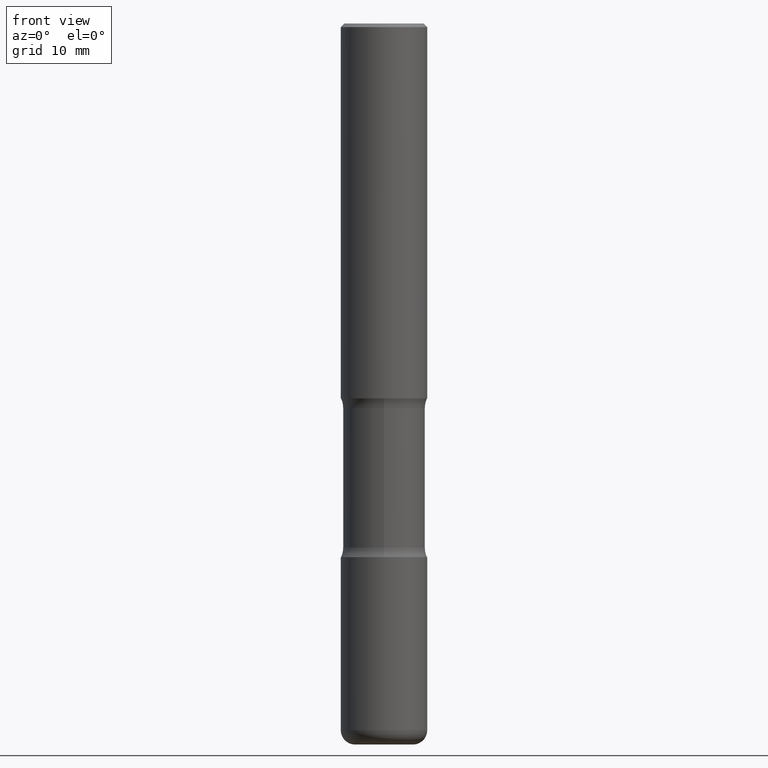
[diagram: clean part render]
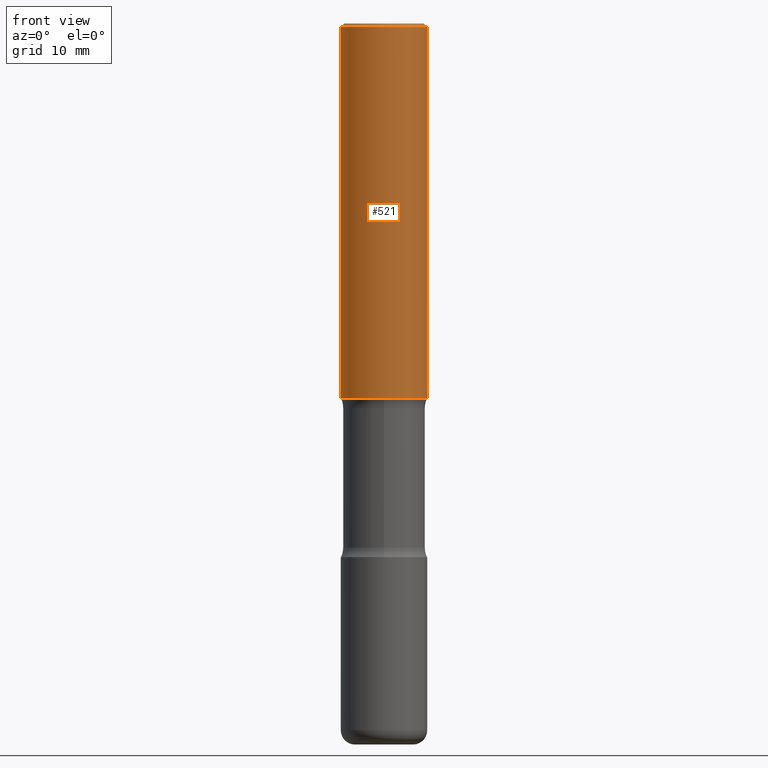
[diagram: same view with one face highlighted and labeled with its STEP entity id]
A machine part, front view. The second image highlights one B-rep face of the part: STEP entity #521.
In plain terms, the highlighted cylindrical surface (partial cylindrical patch) has radius 5.9995 mm, axis along (-0, 0, 1).
Its self-contained STEP definition (entity closure, byte-faithful):
#6 = CIRCLE ( 'NONE', #93, 0.2362000000000001321 ) ;
#10 = EDGE_CURVE ( 'NONE', #498, #205, #261, .T. ) ;
#44 = DIRECTION ( 'NONE',  ( -2.445468806185136597E-29, 3.491481338843145583E-15, 1.000000000000000000 ) ) ;
#64 = CARTESIAN_POINT ( 'NONE',  ( -0.2361999999999999933, 1.678301941865356591E-15, -1.161852468318208757E-29 ) ) ;
#79 = DIRECTION ( 'NONE',  ( -2.445468806185136597E-29, 3.491481338843145583E-15, 1.000000000000000000 ) ) ;
#81 = CARTESIAN_POINT ( 'NONE',  ( -0.2361999999999998823, 1.579546157692632438E-15, -0.02000000000000006981 ) ) ;
#90 = DIRECTION ( 'NONE',  ( -2.445468806185136877E-29, 3.491481338843145188E-15, 1.000000000000000000 ) ) ;
#93 = AXIS2_PLACEMENT_3D ( 'NONE', #378, #117, #373 ) ;
#101 = AXIS2_PLACEMENT_3D ( 'NONE', #555, #44, #300 ) ;
#105 = VERTEX_POINT ( 'NONE', #207 ) ;
#116 = ORIENTED_EDGE ( 'NONE', *, *, #246, .T. ) ;
#117 = DIRECTION ( 'NONE',  ( -2.445468806185136597E-29, 3.491481338843145583E-15, 1.000000000000000000 ) ) ;
#184 = CARTESIAN_POINT ( 'NONE',  ( 0.2361999999999999933, -1.649375784469496131E-15, 1.151752954443000088E-29 ) ) ;
#205 = VERTEX_POINT ( 'NONE', #343 ) ;
#207 = CARTESIAN_POINT ( 'NONE',  ( 0.2362000000000001321, -8.797136381349186305E-15, -2.047200000000000131 ) ) ;
#226 = LINE ( 'NONE', #64, #289 ) ;
#231 = DIRECTION ( 'NONE',  ( -2.445468806185136877E-29, 3.491481338843145188E-15, 1.000000000000000000 ) ) ;
#245 = CARTESIAN_POINT ( 'NONE',  ( -0.2362000000000001598, -1.930493169962915017E-15, -2.047200000000000131 ) ) ;
#246 = EDGE_CURVE ( 'NONE', #105, #205, #476, .T. ) ;
#261 = CIRCLE ( 'NONE', #101, 0.2361999999999998823 ) ;
#289 = VECTOR ( 'NONE', #231, 39.37007874015748143 ) ;
#300 = DIRECTION ( 'NONE',  ( 1.000000000000000000, -6.982962677686267499E-15, 0.000000000000000000 ) ) ;
#343 = CARTESIAN_POINT ( 'NONE',  ( 0.2361999999999998823, -1.690279253850498179E-15, -0.02000000000000006981 ) ) ;
#373 = DIRECTION ( 'NONE',  ( 1.000000000000000000, -6.982962677686269077E-15, 0.000000000000000000 ) ) ;
#378 = CARTESIAN_POINT ( 'NONE',  ( 5.006363740022212241E-29, -7.147760596879688202E-15, -2.047200000000000131 ) ) ;
#423 = ORIENTED_EDGE ( 'NONE', *, *, #494, .T. ) ;
#424 = EDGE_CURVE ( 'NONE', #538, #498, #226, .T. ) ;
#458 = FACE_OUTER_BOUND ( 'NONE', #550, .T. ) ;
#476 = LINE ( 'NONE', #184, #535 ) ;
#492 = ORIENTED_EDGE ( 'NONE', *, *, #424, .F. ) ;
#494 = EDGE_CURVE ( 'NONE', #538, #105, #6, .T. ) ;
#498 = VERTEX_POINT ( 'NONE', #81 ) ;
#501 = ORIENTED_EDGE ( 'NONE', *, *, #10, .F. ) ;
#502 = CYLINDRICAL_SURFACE ( 'NONE', #527, 0.2361999999999999933 ) ;
#504 = CARTESIAN_POINT ( 'NONE',  ( 0.000000000000000000, 0.000000000000000000, 0.000000000000000000 ) ) ;
#521 = ADVANCED_FACE ( 'NONE', ( #458 ), #502, .T. ) ;
#527 = AXIS2_PLACEMENT_3D ( 'NONE', #504, #79, #551 ) ;
#535 = VECTOR ( 'NONE', #90, 39.37007874015748143 ) ;
#538 = VERTEX_POINT ( 'NONE', #245 ) ;
#550 = EDGE_LOOP ( 'NONE', ( #492, #423, #116, #501 ) ) ;
#551 = DIRECTION ( 'NONE',  ( 1.000000000000000000, -6.982962677686266711E-15, 4.876176775795936353E-29 ) ) ;
#555 = CARTESIAN_POINT ( 'NONE',  ( 4.890937612370289799E-31, -6.982962677686315028E-17, -0.02000000000000006981 ) ) ;